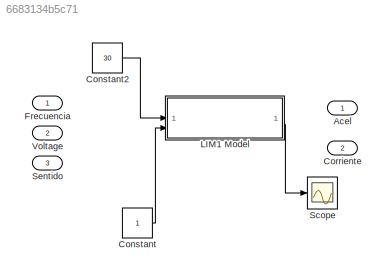
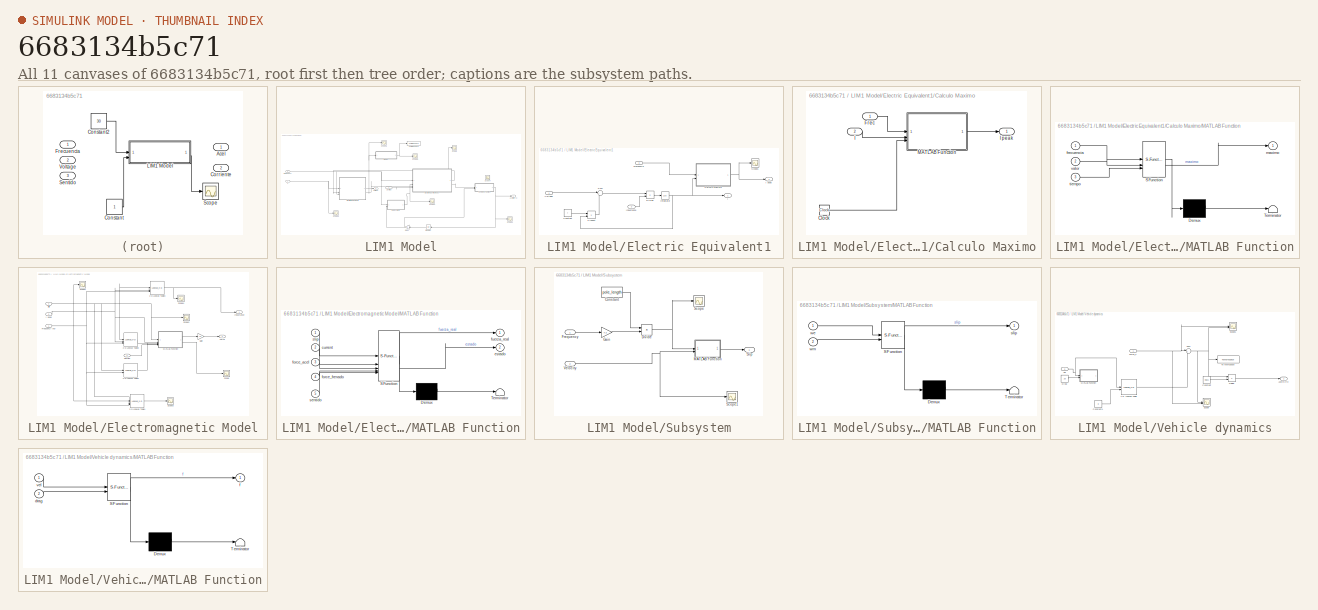
[diagram: thumbnail index - all 11 canvases of the model, root first then tree order]
MODEL slx_6683134b5c71
KIND model
CONFIG AbsTol = auto
CONFIG EnableMultiTasking = off
CONFIG FixedStep = auto
CONFIG MaxStep = auto
CONFIG MinStep = auto
CONFIG RelTol = 1e-3
CONFIG SampleTimeConstraint = Unconstrained
CONFIG SolverName = VariableStepAuto
CONFIG StartTime = 0.0
CONFIG StopTime = 10.0
BLOCK [Outport] Acel
BLOCK [Constant] Constant
BLOCK [Constant] Constant2
  Value = 30
BLOCK [Outport] Corriente
  Port = 2
BLOCK [Inport] Frecuencia
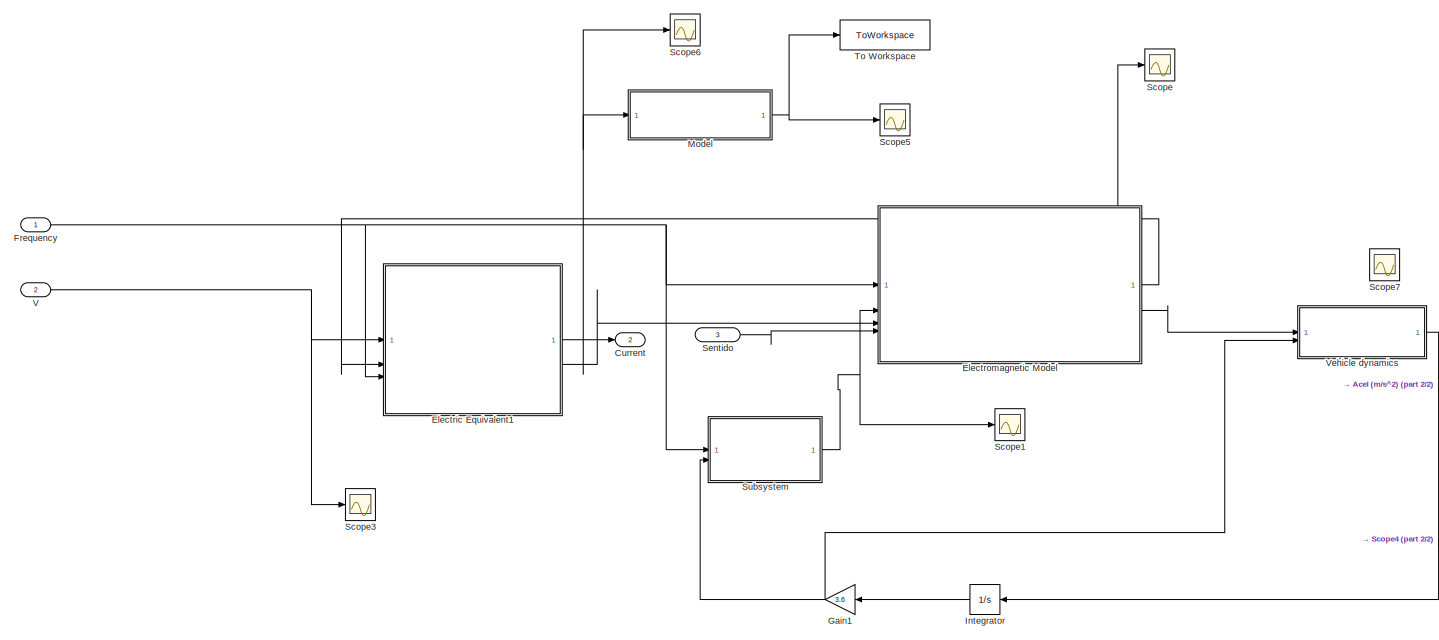
[diagram: LIM1 Model - part 1/2, most of the canvas]
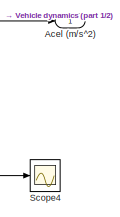
[diagram: LIM1 Model - part 2/2, bottom right region]
BLOCK [SubSystem] LIM1 Model
BLOCK [Outport] LIM1 Model/Acel (m//s^2)
BLOCK [Outport] LIM1 Model/Current
  Port = 2
BLOCK [SubSystem] LIM1 Model/Electric Equivalent1
BLOCK [SubSystem] LIM1 Model/Electric Equivalent1/Calculo Maximo
BLOCK [Clock] LIM1 Model/Electric Equivalent1/Calculo Maximo/Clock
BLOCK [Inport] LIM1 Model/Electric Equivalent1/Calculo Maximo/Frec
BLOCK [Inport] LIM1 Model/Electric Equivalent1/Calculo Maximo/I
  Port = 2
BLOCK [Outport] LIM1 Model/Electric Equivalent1/Calculo Maximo/I peak
BLOCK [SubSystem] LIM1 Model/Electric Equivalent1/Calculo Maximo/MATLAB Function
  ErrorFcn = Stateflow.Translate.translate
  LibrarySourceBlock = simulink/User-Defined\nFunctions/MATLAB Function
  PermitHierarchicalResolution = ExplicitOnly
  SFBlockType = MATLAB Function
  TreatAsAtomicUnit = on
BLOCK [Demux] LIM1 Model/Electric Equivalent1/Calculo Maximo/MATLAB Function/ Demux 
  Outputs = 1
BLOCK [S-Function] LIM1 Model/Electric Equivalent1/Calculo Maximo/MATLAB Function/ SFunction 
  EnableBusSupport = on
  FunctionName = sf_sfun
  PortCounts = [3 2]
  SFcnIsStateOwnerBlock = off
  SFunctionDeploymentMode = off
  Tag = Stateflow S-Function 3
BLOCK [Terminator] LIM1 Model/Electric Equivalent1/Calculo Maximo/MATLAB Function/ Terminator 
BLOCK [Inport] LIM1 Model/Electric Equivalent1/Calculo Maximo/MATLAB Function/frecuencia
BLOCK [Outport] LIM1 Model/Electric Equivalent1/Calculo Maximo/MATLAB Function/maximo
BLOCK [Inport] LIM1 Model/Electric Equivalent1/Calculo Maximo/MATLAB Function/tiempo
  Port = 3
BLOCK [Inport] LIM1 Model/Electric Equivalent1/Calculo Maximo/MATLAB Function/valor
  Port = 2
BLOCK [Constant] LIM1 Model/Electric Equivalent1/Constant
  Value = r
BLOCK [Product] LIM1 Model/Electric Equivalent1/Divide
  Inputs = */
BLOCK [Inport] LIM1 Model/Electric Equivalent1/Frecuencia
  Port = 3
BLOCK [Outport] LIM1 Model/Electric Equivalent1/I 
BLOCK [Outport] LIM1 Model/Electric Equivalent1/I peak
  Port = 2
BLOCK [Inport] LIM1 Model/Electric Equivalent1/Inductance
  Port = 2
BLOCK [Integrator] LIM1 Model/Electric Equivalent1/Integrator
BLOCK [Product] LIM1 Model/Electric Equivalent1/Product
BLOCK [Scope] LIM1 Model/Electric Equivalent1/Scope1
  Floating = off
  NumInputPorts = 1
  ScopeSpecificationString = Simulink.scopes.TimeScopeBlockCfg('CurrentConfiguration', extmgr.ConfigurationSet(extmgr.Configuration('Core','General UI',true),extmgr.Configuration('Core','Source UI',true),extmgr.Configuration('Sources','WiredSimulink',true,'DataLoggingVariableName','ScopeData9'),extmgr.Configuration('Visuals','Time Domain',true,'SerializedDisplays',{struct('MinYLimReal','-11.61693','MaxYLimReal','104.55239','Y...<+1458ch>
BLOCK [Sum] LIM1 Model/Electric Equivalent1/Sum
  Inputs = |+-
BLOCK [Inport] LIM1 Model/Electric Equivalent1/Voltage
BLOCK [SubSystem] LIM1 Model/Electromagnetic Model
BLOCK [Lookup_n-D] LIM1 Model/Electromagnetic Model/2-D Lookup Table1
  BreakpointsForDimension1 = slip
  BreakpointsForDimension2 = Ipeak
  BreakpointsForDimension3 = frecuencia
  InputPortMap = u0,u1,u2
  InternalRulePriority = Speed
  InterpMethod = Nearest
  NumberOfTableDimensions = 3
  RndMeth = Simplest
  Table = FuerzaY_acel
BLOCK [Lookup_n-D] LIM1 Model/Electromagnetic Model/2-D Lookup Table2
  BreakpointsForDimension1 = slip
  BreakpointsForDimension2 = Ipeak
  BreakpointsForDimension3 = frecuencia
  InputPortMap = u0,u1,u2
  InternalRulePriority = Speed
  InterpMethod = Nearest
  NumberOfTableDimensions = 3
  RndMeth = Simplest
  Table = FuerzaX_acel
BLOCK [Lookup_n-D] LIM1 Model/Electromagnetic Model/2-D Lookup Table3
  BreakpointsForDimension1 = Ipeak(2:(end-1))
  BreakpointsForDimension2 = slip
  BreakpointsForDimension3 = frecuencia
  InputPortMap = u0,u1,u2
  InternalRulePriority = Speed
  InterpMethod = Nearest
  NumberOfTableDimensions = 3
  RndMeth = Simplest
  Table = L
BLOCK [Lookup_n-D] LIM1 Model/Electromagnetic Model/2-D Lookup Table4
  BreakpointsForDimension1 = slip_freno
  BreakpointsForDimension2 = frecuencia_freno
  BreakpointsForDimension3 = frecuencia
  InputPortMap = u0,u1
  InternalRulePriority = Speed
  InterpMethod = Nearest
  RndMeth = Simplest
  Table = FuerzaX_freno
BLOCK [Outport] LIM1 Model/Electromagnetic Model/Force
  Port = 2
BLOCK [Inport] LIM1 Model/Electromagnetic Model/Frequency (Hz)
BLOCK [Gain] LIM1 Model/Electromagnetic Model/Gain
  Gain = 1.3
BLOCK [Inport] LIM1 Model/Electromagnetic Model/I peak
  Port = 3
BLOCK [Outport] LIM1 Model/Electromagnetic Model/Inductance
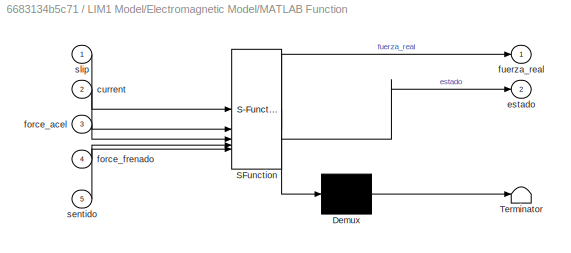
BLOCK [SubSystem] LIM1 Model/Electromagnetic Model/MATLAB Function
  ErrorFcn = Stateflow.Translate.translate
  LibrarySourceBlock = simulink/User-Defined\nFunctions/MATLAB Function
  PermitHierarchicalResolution = ExplicitOnly
  SFBlockType = MATLAB Function
  TreatAsAtomicUnit = on
BLOCK [Demux] LIM1 Model/Electromagnetic Model/MATLAB Function/ Demux 
  Outputs = 1
BLOCK [S-Function] LIM1 Model/Electromagnetic Model/MATLAB Function/ SFunction 
  EnableBusSupport = on
  FunctionName = sf_sfun
  PortCounts = [5 3]
  SFcnIsStateOwnerBlock = off
  SFunctionDeploymentMode = off
  Tag = Stateflow S-Function 1
BLOCK [Terminator] LIM1 Model/Electromagnetic Model/MATLAB Function/ Terminator 
BLOCK [Inport] LIM1 Model/Electromagnetic Model/MATLAB Function/current
  Port = 2
BLOCK [Outport] LIM1 Model/Electromagnetic Model/MATLAB Function/estado
  Port = 2
BLOCK [Inport] LIM1 Model/Electromagnetic Model/MATLAB Function/force_acel
  Port = 3
BLOCK [Inport] LIM1 Model/Electromagnetic Model/MATLAB Function/force_frenado
  Port = 4
BLOCK [Outport] LIM1 Model/Electromagnetic Model/MATLAB Function/fuerza_real
BLOCK [Inport] LIM1 Model/Electromagnetic Model/MATLAB Function/sentido
  Port = 5
BLOCK [Inport] LIM1 Model/Electromagnetic Model/MATLAB Function/slip
BLOCK [Scope] LIM1 Model/Electromagnetic Model/Scope
  Floating = off
  NumInputPorts = 1
  ScopeSpecificationString = Simulink.scopes.TimeScopeBlockCfg('CurrentConfiguration', extmgr.ConfigurationSet(extmgr.Configuration('Core','General UI',true),extmgr.Configuration('Core','Source UI',true),extmgr.Configuration('Sources','WiredSimulink',true,'DataLoggingVariableName','ScopeData3'),extmgr.Configuration('Visuals','Time Domain',true,'SerializedDisplays',{struct('MinYLimReal','0.85402','MaxYLimReal','3.10846','YLabe...<+1456ch>
BLOCK [Scope] LIM1 Model/Electromagnetic Model/Scope1
  Floating = off
  NumInputPorts = 1
  ScopeSpecificationString = Simulink.scopes.TimeScopeBlockCfg('CurrentConfiguration', extmgr.ConfigurationSet(extmgr.Configuration('Core','General UI',true),extmgr.Configuration('Core','Source UI',true),extmgr.Configuration('Sources','WiredSimulink',true,'DataLoggingVariableName','ScopeData4'),extmgr.Configuration('Visuals','Time Domain',true,'SerializedDisplays',{struct('MinYLimReal','-6.96365','MaxYLimReal','2.24234','YLab...<+1407ch>
BLOCK [Scope] LIM1 Model/Electromagnetic Model/Scope2
  Floating = off
  NumInputPorts = 1
  ScopeSpecificationString = Simulink.scopes.TimeScopeBlockCfg('CurrentConfiguration', extmgr.ConfigurationSet(extmgr.Configuration('Core','General UI',true),extmgr.Configuration('Core','Source UI',true),extmgr.Configuration('Sources','WiredSimulink',true,'DataLoggingVariableName','ScopeData1'),extmgr.Configuration('Visuals','Time Domain',true,'SerializedDisplays',{struct('MinYLimReal','-1.80604','MaxYLimReal','6.00245','YLab...<+1407ch>
BLOCK [Scope] LIM1 Model/Electromagnetic Model/Scope3
  Floating = off
  NumInputPorts = 1
  ScopeSpecificationString = Simulink.scopes.TimeScopeBlockCfg('CurrentConfiguration', extmgr.ConfigurationSet(extmgr.Configuration('Core','General UI',true),extmgr.Configuration('Core','Source UI',true),extmgr.Configuration('Sources','WiredSimulink',true,'DataLoggingVariableName','ScopeData1'),extmgr.Configuration('Visuals','Time Domain',true,'SerializedDisplays',{struct('MinYLimReal','-2646.34911','MaxYLimReal','1767.7025',...<+1440ch>
BLOCK [Scope] LIM1 Model/Electromagnetic Model/Scope4
  Floating = off
  NumInputPorts = 1
  ScopeSpecificationString = Simulink.scopes.TimeScopeBlockCfg('CurrentConfiguration', extmgr.ConfigurationSet(extmgr.Configuration('Core','General UI',true),extmgr.Configuration('Core','Source UI',true),extmgr.Configuration('Sources','WiredSimulink',true,'DataLoggingVariableName','ScopeData2'),extmgr.Configuration('Visuals','Time Domain',true,'SerializedDisplays',{struct('MinYLimReal','0.00132','MaxYLimReal','0.00306','YLabe...<+1374ch>
BLOCK [Inport] LIM1 Model/Electromagnetic Model/Sentido
  Port = 4
BLOCK [Inport] LIM1 Model/Electromagnetic Model/Slip
  Port = 2
BLOCK [Inport] LIM1 Model/Frequency
BLOCK [Gain] LIM1 Model/Gain1
  Gain = 3.6
  NameLocation = top
BLOCK [Integrator] LIM1 Model/Integrator
  NameLocation = top
BLOCK [ModelReference] LIM1 Model/Model
  ModelNameDialog = Bloque_calentamiento.slx
  ModelReferenceVersion = 3.8
BLOCK [Scope] LIM1 Model/Scope
  Floating = off
  NumInputPorts = 1
  ScopeSpecificationString = Simulink.scopes.TimeScopeBlockCfg('CurrentConfiguration', extmgr.ConfigurationSet(extmgr.Configuration('Core','General UI',true),extmgr.Configuration('Core','Source UI',true),extmgr.Configuration('Sources','WiredSimulink',true,'DataLoggingVariableName','ScopeData2'),extmgr.Configuration('Visuals','Time Domain',true,'SerializedDisplays',{struct('MinYLimReal','0.00456','MaxYLimReal','0.00908','YLabe...<+1406ch>
BLOCK [Scope] LIM1 Model/Scope1
  Floating = off
  NumInputPorts = 1
  ScopeSpecificationString = Simulink.scopes.TimeScopeBlockCfg('CurrentConfiguration', extmgr.ConfigurationSet(extmgr.Configuration('Core','General UI',true),extmgr.Configuration('Core','Source UI',true),extmgr.Configuration('Sources','WiredSimulink',true,'DataLoggingVariableName','ScopeData1'),extmgr.Configuration('Visuals','Time Domain',true,'SerializedDisplays',{struct('MinYLimReal','-0.12394','MaxYLimReal','1.33932','YLab...<+1441ch>
BLOCK [Scope] LIM1 Model/Scope3
  Floating = off
  NumInputPorts = 1
  ScopeSpecificationString = Simulink.scopes.TimeScopeBlockCfg('CurrentConfiguration', extmgr.ConfigurationSet(extmgr.Configuration('Core','General UI',true),extmgr.Configuration('Core','Source UI',true),extmgr.Configuration('Sources','WiredSimulink',true),extmgr.Configuration('Visuals','Time Domain',true,'SerializedDisplays',{struct('MinYLimReal','-72.13544','MaxYLimReal','72.08699','YLabelReal','','MinYLimMag','0.00000','Ma...<+1372ch>
BLOCK [Scope] LIM1 Model/Scope4
  Floating = off
  NumInputPorts = 1
  ScopeSpecificationString = Simulink.scopes.TimeScopeBlockCfg('CurrentConfiguration', extmgr.ConfigurationSet(extmgr.Configuration('Core','General UI',true),extmgr.Configuration('Core','Source UI',true),extmgr.Configuration('Sources','WiredSimulink',true,'DataLoggingVariableName','ScopeData3'),extmgr.Configuration('Visuals','Time Domain',true,'SerializedDisplays',{struct('MinYLimReal','-4.17312','MaxYLimReal','6.19724','YLab...<+1406ch>
BLOCK [Scope] LIM1 Model/Scope5
  Floating = off
  NumInputPorts = 1
  ScopeSpecificationString = Simulink.scopes.TimeScopeBlockCfg('CurrentConfiguration', extmgr.ConfigurationSet(extmgr.Configuration('Core','General UI',true),extmgr.Configuration('Core','Source UI',true),extmgr.Configuration('Sources','WiredSimulink',true,'DataLoggingVariableName','ScopeData6'),extmgr.Configuration('Visuals','Time Domain',true,'SerializedDisplays',{struct('MinYLimReal','37.67701','MaxYLimReal','60.90694','YLa...<+1445ch>
BLOCK [Scope] LIM1 Model/Scope6
  Floating = off
  NumInputPorts = 1
  ScopeSpecificationString = Simulink.scopes.TimeScopeBlockCfg('CurrentConfiguration', extmgr.ConfigurationSet(extmgr.Configuration('Core','General UI',true),extmgr.Configuration('Core','Source UI',true),extmgr.Configuration('Sources','WiredSimulink',true,'DataLoggingVariableName','ScopeData4'),extmgr.Configuration('Visuals','Time Domain',true,'SerializedDisplays',{struct('MinYLimReal','-135.43189','MaxYLimReal','130.86507','...<+1468ch>
BLOCK [Scope] LIM1 Model/Scope7
  Floating = off
  NumInputPorts = 1
  ScopeSpecificationString = Simulink.scopes.TimeScopeBlockCfg('CurrentConfiguration', extmgr.ConfigurationSet(extmgr.Configuration('Core','General UI',true),extmgr.Configuration('Core','Source UI',true),extmgr.Configuration('Sources','WiredSimulink',true,'DataLoggingVariableName','ScopeData1'),extmgr.Configuration('Visuals','Time Domain',true,'SerializedDisplays',{struct('MinYLimReal','-1100.82596','MaxYLimReal','1291.24907'...<+1498ch>
BLOCK [Inport] LIM1 Model/Sentido
  Port = 3
BLOCK [SubSystem] LIM1 Model/Subsystem
BLOCK [Constant] LIM1 Model/Subsystem/Constant
  Value = pole_length
BLOCK [Product] LIM1 Model/Subsystem/Divide
  Inputs = **
BLOCK [Inport] LIM1 Model/Subsystem/Frequency
BLOCK [Gain] LIM1 Model/Subsystem/Gain
  Gain = 7.2
BLOCK [SubSystem] LIM1 Model/Subsystem/MATLAB Function
  ErrorFcn = Stateflow.Translate.translate
  PermitHierarchicalResolution = ExplicitOnly
  SFBlockType = MATLAB Function
  TreatAsAtomicUnit = on
BLOCK [Demux] LIM1 Model/Subsystem/MATLAB Function/ Demux 
  Outputs = 1
BLOCK [S-Function] LIM1 Model/Subsystem/MATLAB Function/ SFunction 
  EnableBusSupport = on
  FunctionName = sf_sfun
  PortCounts = [2 2]
  SFcnIsStateOwnerBlock = off
  SFunctionDeploymentMode = off
  Tag = Stateflow S-Function 4
BLOCK [Terminator] LIM1 Model/Subsystem/MATLAB Function/ Terminator 
BLOCK [Outport] LIM1 Model/Subsystem/MATLAB Function/slip
BLOCK [Inport] LIM1 Model/Subsystem/MATLAB Function/we
BLOCK [Inport] LIM1 Model/Subsystem/MATLAB Function/wm
  Port = 2
BLOCK [Scope] LIM1 Model/Subsystem/Scope
  Floating = off
  NumInputPorts = 1
  ScopeSpecificationString = Simulink.scopes.TimeScopeBlockCfg('CurrentConfiguration', extmgr.ConfigurationSet(extmgr.Configuration('Core','General UI',true),extmgr.Configuration('Core','Source UI',true),extmgr.Configuration('Sources','WiredSimulink',true,'DataLoggingVariableName','ScopeData2'),extmgr.Configuration('Visuals','Time Domain',true,'SerializedDisplays',{struct('MinYLimReal','-10.4652','MaxYLimReal','44.9388','YLab...<+1429ch>
BLOCK [Scope] LIM1 Model/Subsystem/Scope1
  Floating = off
  NumInputPorts = 1
  ScopeSpecificationString = Simulink.scopes.TimeScopeBlockCfg('CurrentConfiguration', extmgr.ConfigurationSet(extmgr.Configuration('Core','General UI',true),extmgr.Configuration('Core','Source UI',true),extmgr.Configuration('Sources','WiredSimulink',true,'DataLoggingVariableName','ScopeData4'),extmgr.Configuration('Visuals','Time Domain',true,'SerializedDisplays',{struct('MinYLimReal','-4.30459','MaxYLimReal','38.74132','YLa...<+1423ch>
BLOCK [Outport] LIM1 Model/Subsystem/Slip
BLOCK [Inport] LIM1 Model/Subsystem/Velocity
  Port = 2
BLOCK [ToWorkspace] LIM1 Model/To Workspace
  FixptAsFi = on
  MaxDataPoints = inf
  SampleTime = -1
  VariableName = Temp
BLOCK [Inport] LIM1 Model/V 
  Port = 2
BLOCK [SubSystem] LIM1 Model/Vehicle dynamics
BLOCK [Lookup_n-D] LIM1 Model/Vehicle dynamics/1-D Lookup Table
  BreakpointsForDimension1 = vel_drag
  BreakpointsForDimension2 = airgap_drag
  InputPortMap = u0,u1
  InternalRulePriority = Speed
  InterpMethod = Nearest
  RndMeth = Simplest
  Table = Force_drag
BLOCK [Outport] LIM1 Model/Vehicle dynamics/Acel m//s^2
BLOCK [Constant] LIM1 Model/Vehicle dynamics/Constant
  Value = mass
BLOCK [Constant] LIM1 Model/Vehicle dynamics/Constant1
  Value = 8
BLOCK [Product] LIM1 Model/Vehicle dynamics/Divide
  Inputs = */
BLOCK [Constant] LIM1 Model/Vehicle dynamics/Drag
  Value = 20
BLOCK [Inport] LIM1 Model/Vehicle dynamics/Force_x
BLOCK [SubSystem] LIM1 Model/Vehicle dynamics/MATLAB Function
  ErrorFcn = Stateflow.Translate.translate
  LibrarySourceBlock = simulink/User-Defined\nFunctions/MATLAB Function
  PermitHierarchicalResolution = ExplicitOnly
  SFBlockType = MATLAB Function
  TreatAsAtomicUnit = on
BLOCK [Demux] LIM1 Model/Vehicle dynamics/MATLAB Function/ Demux 
  Outputs = 1
BLOCK [S-Function] LIM1 Model/Vehicle dynamics/MATLAB Function/ SFunction 
  EnableBusSupport = on
  FunctionName = sf_sfun
  PortCounts = [2 2]
  SFcnIsStateOwnerBlock = off
  SFunctionDeploymentMode = off
  Tag = Stateflow S-Function 11
BLOCK [Terminator] LIM1 Model/Vehicle dynamics/MATLAB Function/ Terminator 
BLOCK [Inport] LIM1 Model/Vehicle dynamics/MATLAB Function/drag
  Port = 2
BLOCK [Outport] LIM1 Model/Vehicle dynamics/MATLAB Function/f
BLOCK [Inport] LIM1 Model/Vehicle dynamics/MATLAB Function/vel
BLOCK [Scope] LIM1 Model/Vehicle dynamics/Scope
  Floating = off
  NumInputPorts = 2
  ScopeSpecificationString = Simulink.scopes.TimeScopeBlockCfg('CurrentConfiguration', extmgr.ConfigurationSet(extmgr.Configuration('Core','General UI',true),extmgr.Configuration('Core','Source UI',true),extmgr.Configuration('Sources','WiredSimulink',true,'DataLoggingVariableName','ScopeData11'),extmgr.Configuration('Visuals','Time Domain',true,'SerializedDisplays',{struct('MinYLimReal','-15.02736','MaxYLimReal','28.61854','Y...<+1451ch>
BLOCK [Scope] LIM1 Model/Vehicle dynamics/Scope1
  Floating = off
  NumInputPorts = 2
  ScopeSpecificationString = Simulink.scopes.TimeScopeBlockCfg('CurrentConfiguration', extmgr.ConfigurationSet(extmgr.Configuration('Core','General UI',true),extmgr.Configuration('Core','Source UI',true),extmgr.Configuration('Sources','WiredSimulink',true,'DataLoggingVariableName','ScopeData3'),extmgr.Configuration('Visuals','Time Domain',true,'SerializedDisplays',{struct('MinYLimReal','-7.09413','MaxYLimReal','17.22375','YLa...<+1451ch>
BLOCK [Sum] LIM1 Model/Vehicle dynamics/Sum
  Inputs = |+-
BLOCK [ToWorkspace] LIM1 Model/Vehicle dynamics/To Workspace
  FixptAsFi = on
  MaxDataPoints = inf
  SampleTime = -1
  VariableName = forceX
BLOCK [Inport] LIM1 Model/Vehicle dynamics/Vel
  Port = 2
BLOCK [Scope] Scope
  Floating = off
  NumInputPorts = 1
  ScopeSpecificationString = Simulink.scopes.TimeScopeBlockCfg('CurrentConfiguration', extmgr.ConfigurationSet(extmgr.Configuration('Core','General UI',true),extmgr.Configuration('Core','Source UI',true),extmgr.Configuration('Sources','WiredSimulink',true,'DataLoggingVariableName','ScopeData1'),extmgr.Configuration('Visuals','Time Domain',true,'SerializedDisplays',{struct('MinYLimReal','-48.82812','MaxYLimReal','439.45312','Y...<+1381ch>
BLOCK [Inport] Sentido
  Port = 3
BLOCK [Inport] Voltage
  Port = 2
LINE Constant2:1 -> LIM1 Model:1
LINE Constant:1 -> LIM1 Model:3
LINE LIM1 Model/Electric Equivalent1/Calculo Maximo/Clock:1 -> LIM1 Model/Electric Equivalent1/Calculo Maximo/MATLAB Function:3
LINE LIM1 Model/Electric Equivalent1/Calculo Maximo/Frec:1 -> LIM1 Model/Electric Equivalent1/Calculo Maximo/MATLAB Function:1
LINE LIM1 Model/Electric Equivalent1/Calculo Maximo/I:1 -> LIM1 Model/Electric Equivalent1/Calculo Maximo/MATLAB Function:2
LINE LIM1 Model/Electric Equivalent1/Calculo Maximo/MATLAB Function:1 -> LIM1 Model/Electric Equivalent1/Calculo Maximo/I peak:1
NET LIM1 Model/Electric Equivalent1/Calculo Maximo:1 -> LIM1 Model/Electric Equivalent1/I peak:1, LIM1 Model/Electric Equivalent1/Scope1:1
LINE LIM1 Model/Electric Equivalent1/Constant:1 -> LIM1 Model/Electric Equivalent1/Product:1
LINE LIM1 Model/Electric Equivalent1/Divide:1 -> LIM1 Model/Electric Equivalent1/Integrator:1
LINE LIM1 Model/Electric Equivalent1/Frecuencia:1 -> LIM1 Model/Electric Equivalent1/Calculo Maximo:1
LINE LIM1 Model/Electric Equivalent1/Inductance:1 -> LIM1 Model/Electric Equivalent1/Divide:2
NET LIM1 Model/Electric Equivalent1/Integrator:1 -> LIM1 Model/Electric Equivalent1/Calculo Maximo:2, LIM1 Model/Electric Equivalent1/I :1, LIM1 Model/Electric Equivalent1/Product:2
LINE LIM1 Model/Electric Equivalent1/Product:1 -> LIM1 Model/Electric Equivalent1/Sum:2
LINE LIM1 Model/Electric Equivalent1/Sum:1 -> LIM1 Model/Electric Equivalent1/Divide:1
LINE LIM1 Model/Electric Equivalent1/Voltage:1 -> LIM1 Model/Electric Equivalent1/Sum:1
NET LIM1 Model/Electric Equivalent1:1 -> LIM1 Model/Current:1, LIM1 Model/Model:1, LIM1 Model/Scope6:1
LINE LIM1 Model/Electric Equivalent1:2 -> LIM1 Model/Electromagnetic Model:3
LINE LIM1 Model/Electromagnetic Model/2-D Lookup Table1:1 -> LIM1 Model/Electromagnetic Model/Scope3:1
LINE LIM1 Model/Electromagnetic Model/2-D Lookup Table2:1 -> LIM1 Model/Electromagnetic Model/MATLAB Function:3
NET LIM1 Model/Electromagnetic Model/2-D Lookup Table3:1 -> LIM1 Model/Electromagnetic Model/Inductance:1, LIM1 Model/Electromagnetic Model/Scope4:1
LINE LIM1 Model/Electromagnetic Model/2-D Lookup Table4:1 -> LIM1 Model/Electromagnetic Model/MATLAB Function:4
NET LIM1 Model/Electromagnetic Model/Frequency (Hz):1 -> LIM1 Model/Electromagnetic Model/2-D Lookup Table1:3, LIM1 Model/Electromagnetic Model/2-D Lookup Table2:3, LIM1 Model/Electromagnetic Model/2-D Lookup Table3:3, LIM1 Model/Electromagnetic Model/2-D Lookup Table4:2
LINE LIM1 Model/Electromagnetic Model/Gain:1 -> LIM1 Model/Electromagnetic Model/Force:1
NET LIM1 Model/Electromagnetic Model/I peak:1 -> LIM1 Model/Electromagnetic Model/2-D Lookup Table1:2, LIM1 Model/Electromagnetic Model/2-D Lookup Table2:2, LIM1 Model/Electromagnetic Model/2-D Lookup Table3:2, LIM1 Model/Electromagnetic Model/MATLAB Function:2, LIM1 Model/Electromagnetic Model/Scope1:1
LINE LIM1 Model/Electromagnetic Model/MATLAB Function:1 -> LIM1 Model/Electromagnetic Model/Gain:1
LINE LIM1 Model/Electromagnetic Model/MATLAB Function:2 -> LIM1 Model/Electromagnetic Model/Scope:1
LINE LIM1 Model/Electromagnetic Model/Sentido:1 -> LIM1 Model/Electromagnetic Model/MATLAB Function:5
NET LIM1 Model/Electromagnetic Model/Slip:1 -> LIM1 Model/Electromagnetic Model/2-D Lookup Table1:1, LIM1 Model/Electromagnetic Model/2-D Lookup Table2:1, LIM1 Model/Electromagnetic Model/2-D Lookup Table3:1, LIM1 Model/Electromagnetic Model/2-D Lookup Table4:1, LIM1 Model/Electromagnetic Model/MATLAB Function:1, LIM1 Model/Electromagnetic Model/Scope2:1
NET LIM1 Model/Electromagnetic Model:1 -> LIM1 Model/Electric Equivalent1:2, LIM1 Model/Scope:1
LINE LIM1 Model/Electromagnetic Model:2 -> LIM1 Model/Vehicle dynamics:1
NET LIM1 Model/Frequency:1 -> LIM1 Model/Electric Equivalent1:3, LIM1 Model/Electromagnetic Model:1, LIM1 Model/Subsystem:1
NET LIM1 Model/Gain1:1 -> LIM1 Model/Subsystem:2, LIM1 Model/Vehicle dynamics:2
LINE LIM1 Model/Integrator:1 -> LIM1 Model/Gain1:1
NET LIM1 Model/Model:1 -> LIM1 Model/Scope5:1, LIM1 Model/To Workspace:1
LINE LIM1 Model/Sentido:1 -> LIM1 Model/Electromagnetic Model:4
LINE LIM1 Model/Subsystem/Constant:1 -> LIM1 Model/Subsystem/Divide:1
NET LIM1 Model/Subsystem/Divide:1 -> LIM1 Model/Subsystem/MATLAB Function:1, LIM1 Model/Subsystem/Scope:1
LINE LIM1 Model/Subsystem/Frequency:1 -> LIM1 Model/Subsystem/Gain:1
LINE LIM1 Model/Subsystem/Gain:1 -> LIM1 Model/Subsystem/Divide:2
LINE LIM1 Model/Subsystem/MATLAB Function:1 -> LIM1 Model/Subsystem/Slip:1
NET LIM1 Model/Subsystem/Velocity:1 -> LIM1 Model/Subsystem/MATLAB Function:2, LIM1 Model/Subsystem/Scope1:1
NET LIM1 Model/Subsystem:1 -> LIM1 Model/Electromagnetic Model:2, LIM1 Model/Scope1:1
NET LIM1 Model/V :1 -> LIM1 Model/Electric Equivalent1:1, LIM1 Model/Scope3:1
LINE LIM1 Model/Vehicle dynamics/1-D Lookup Table:1 -> LIM1 Model/Vehicle dynamics/Sum:2
LINE LIM1 Model/Vehicle dynamics/Constant1:1 -> LIM1 Model/Vehicle dynamics/1-D Lookup Table:2
LINE LIM1 Model/Vehicle dynamics/Constant:1 -> LIM1 Model/Vehicle dynamics/Divide:2
LINE LIM1 Model/Vehicle dynamics/Divide:1 -> LIM1 Model/Vehicle dynamics/Acel m//s^2:1
LINE LIM1 Model/Vehicle dynamics/Drag:1 -> LIM1 Model/Vehicle dynamics/MATLAB Function:2
NET LIM1 Model/Vehicle dynamics/Force_x:1 -> LIM1 Model/Vehicle dynamics/Scope1:1, LIM1 Model/Vehicle dynamics/Scope:2, LIM1 Model/Vehicle dynamics/Sum:1
NET LIM1 Model/Vehicle dynamics/Sum:1 -> LIM1 Model/Vehicle dynamics/Divide:1, LIM1 Model/Vehicle dynamics/Scope1:2, LIM1 Model/Vehicle dynamics/Scope:1, LIM1 Model/Vehicle dynamics/To Workspace:1
NET LIM1 Model/Vehicle dynamics/Vel:1 -> LIM1 Model/Vehicle dynamics/1-D Lookup Table:1, LIM1 Model/Vehicle dynamics/MATLAB Function:1
NET LIM1 Model/Vehicle dynamics:1 -> LIM1 Model/Acel (m//s^2):1, LIM1 Model/Integrator:1, LIM1 Model/Scope4:1
LINE LIM1 Model:2 -> Scope:1
note: NET lines group one-source signal fan-out (src -> all destinations, sorted); 1:1 wires keep LINE
CHART LIM1 Model/Electromagnetic Model/MATLAB Function states=1 transitions=1
  STATE_LABEL 'eML_blk_kernel()'
  STATE_LABEL 'SCRIPT:\nfunction [fuerza_real,estado]= fcn(slip,current,force_acel,force_frenado,sentido)\n\nif sentido>=0\n    force=force_acel;\n    estado=1;\nelse\n    force=force_frenado;\n    estado=2;\nend\n\nif slip == 0 || current<2 && current>-2\n\n    fuerza_real=0;\n    estado=3;\n\nelse\n    fuerza_real=force;\n    estado=4;\nend\n'
CHART LIM1 Model/Electric Equivalent1/Calculo Maximo/MATLAB Function states=1 transitions=1
  STATE_LABEL 'eML_blk_kernel()'
  STATE_LABEL 'SCRIPT:\nfunction maximo = fcn(frecuencia,valor,tiempo)\n\n   persistent antiguo_maximo\n    if isempty(antiguo_maximo)\n       antiguo_maximo=0;\n    end\n    persistent t_maximo\n    if isempty(t_maximo)\n       t_maximo=0;\n    end\n\nperiodo=1/abs(frecuencia);\n\n\nif abs(valor)>=antiguo_maximo\n    maximo=abs(valor);\n    antiguo_maximo=abs(valor);\n    t_maximo=tiempo;\nelse\n    maximo=antiguo_maximo;\n    if t...<+124ch>'
CHART LIM1 Model/Subsystem/MATLAB Function states=1 transitions=1
  STATE_LABEL 'eML_blk_kernel()'
  STATE_LABEL 'SCRIPT:\nfunction slip = fcn(we,wm)\n\nslip = (we-wm)/we;\n'
CHART LIM1 Model/Vehicle dynamics/MATLAB Function states=1 transitions=1
  STATE_LABEL 'eML_blk_kernel()'
  STATE_LABEL 'SCRIPT:\nfunction f = fcn(vel,drag)\n\nif vel > 5\n    f=drag;\nelse\n    f=0;\nend'
CHART  states=0 transitions=0
CHART  states=0 transitions=0
CHART  states=0 transitions=0
CHART  states=0 transitions=0
